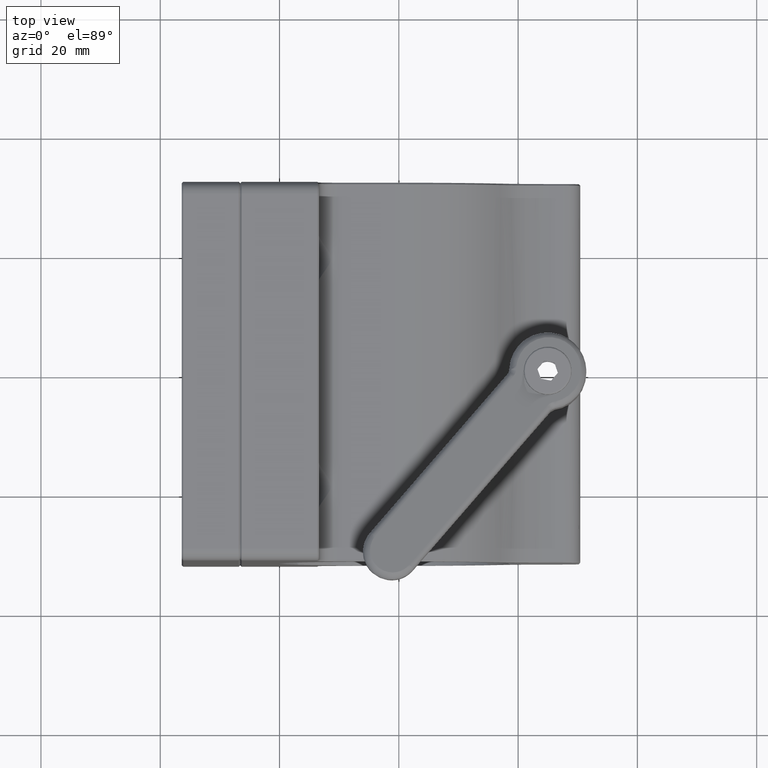
[diagram: clean part render]
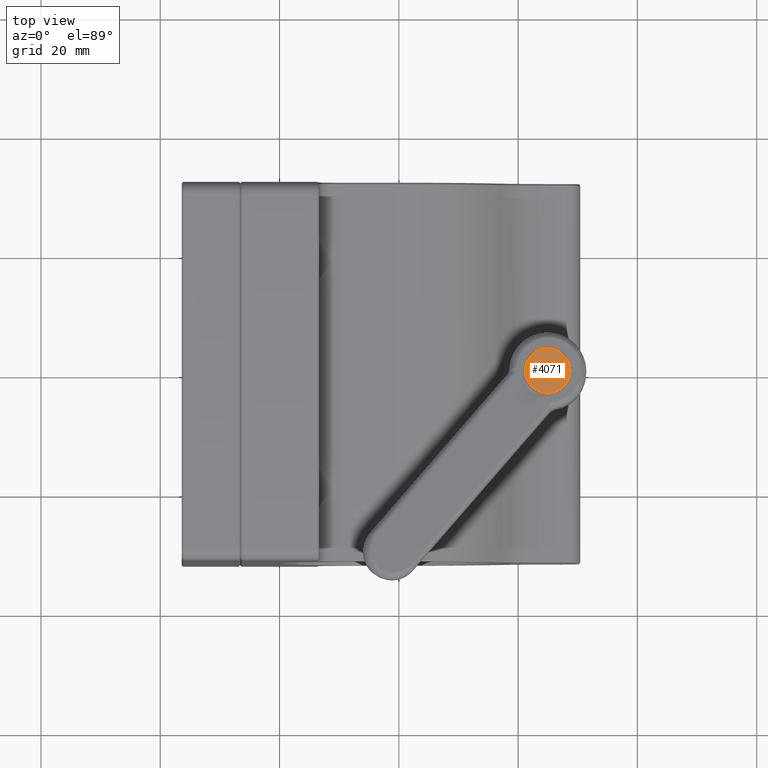
[diagram: same view with one face highlighted and labeled with its STEP entity id]
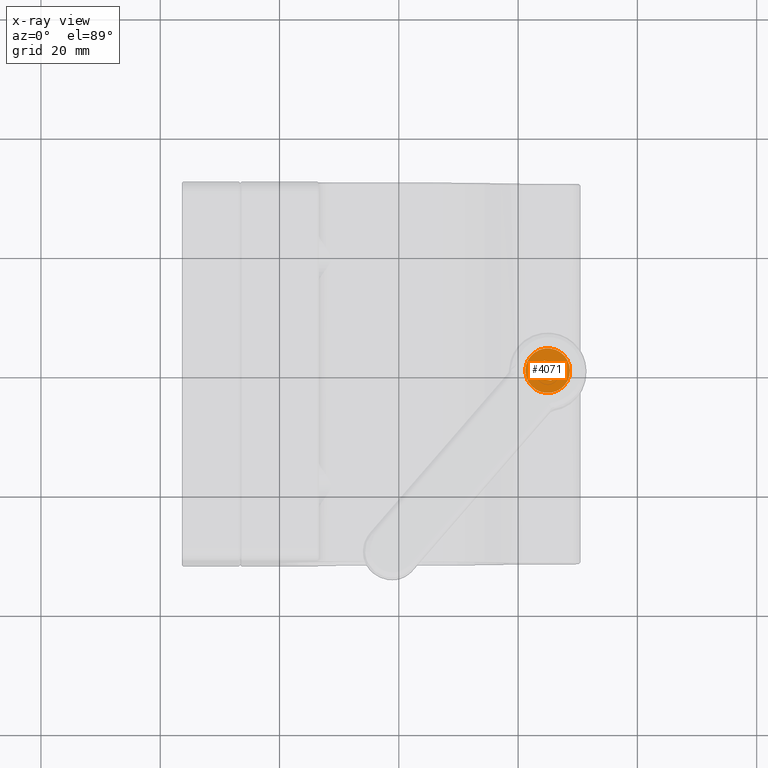
[diagram: x-ray of the same camera — body ghosted, the highlighted face saturated]
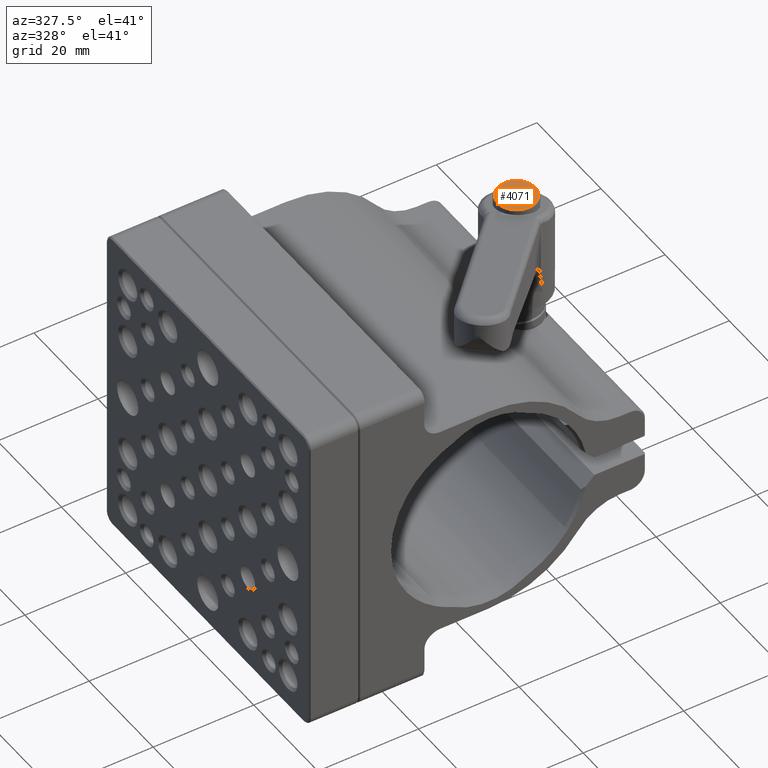
[diagram: same view with one face highlighted and labeled with its STEP entity id]
A machine part, top view. The second image highlights one B-rep face of the part: STEP entity #4071.
The next image is the same camera in x-ray: the body ghosted, the highlighted face saturated — about 0% of this face is hidden behind the body in this view.
A second angle (auxiliary view) of the same face is appended — the face is thin or edge-on in the first view.
In plain terms, the highlighted planar face has unit normal (-0, -0, -1).
Its self-contained STEP definition (entity closure, byte-faithful):
#200 = LINE ( 'NONE', #376, #6995 ) ;
#283 = DIRECTION ( 'NONE',  ( 9.405856477207718559E-17, 5.982243715074308407E-18, 1.000000000000000000 ) ) ;
#376 = CARTESIAN_POINT ( 'NONE',  ( 43.81150883296364640, -1.334178406950882856, 34.67499999999999005 ) ) ;
#760 = EDGE_CURVE ( 'NONE', #13211, #12269, #7745, .T. ) ;
#1499 = CARTESIAN_POINT ( 'NONE',  ( 44.37731318991809815, 1.660845704747088369, 34.67499999999999005 ) ) ;
#2386 = CARTESIAN_POINT ( 'NONE',  ( 44.37731318991809815, 1.660845704747088369, 34.67499999999999005 ) ) ;
#2492 = CARTESIAN_POINT ( 'NONE',  ( 43.22982202288174847, 0.3266672977962040703, 34.67499999999999005 ) ) ;
#2508 = CARTESIAN_POINT ( 'NONE',  ( 46.10649116703629602, 1.334178406950812246, 34.67499999999999005 ) ) ;
#2561 = DIRECTION ( 'NONE',  ( -0.3305482641583057934, 0.9437890892895143269, 2.544491896687376235E-17 ) ) ;
#2875 = DIRECTION ( 'NONE',  ( 0.9826194592184521737, -0.1856313507068149404, -9.131328407011563760E-17 ) ) ;
#3009 = CARTESIAN_POINT ( 'NONE',  ( 43.22982202288174847, 0.3266672977962040703, 34.67499999999999005 ) ) ;
#3091 = VECTOR ( 'NONE', #6194, 1000.000000000000114 ) ;
#3367 = EDGE_CURVE ( 'NONE', #10939, #13211, #6697, .T. ) ;
#3750 = ORIENTED_EDGE ( 'NONE', *, *, #7660, .F. ) ;
#3844 = DIRECTION ( 'NONE',  ( 0.7581577385826993032, -0.6520711950601463247, 0.000000000000000000 ) ) ;
#4041 = ORIENTED_EDGE ( 'NONE', *, *, #15395, .F. ) ;
#4050 = VECTOR ( 'NONE', #9664, 1000.000000000000114 ) ;
#4071 = ADVANCED_FACE ( 'NONE', ( #7161, #10883 ), #15838, .F. ) ;
#4699 = VECTOR ( 'NONE', #11385, 1000.000000000000114 ) ;
#4720 = AXIS2_PLACEMENT_3D ( 'NONE', #14704, #7316, #4726 ) ;
#4726 = DIRECTION ( 'NONE',  ( 0.7581577385826991922, -0.6520711950601464357, -6.741037995350282539E-17 ) ) ;
#4738 = ORIENTED_EDGE ( 'NONE', *, *, #6870, .T. ) ;
#5078 = CARTESIAN_POINT ( 'NONE',  ( 47.79943796760008468, -2.442984732292840633, 34.67500000000686811 ) ) ;
#5557 = EDGE_LOOP ( 'NONE', ( #15587, #4738 ) ) ;
#5618 = VERTEX_POINT ( 'NONE', #10353 ) ;
#5731 = VERTEX_POINT ( 'NONE', #5078 ) ;
#6194 = DIRECTION ( 'NONE',  ( -0.6520711950601464357, -0.7581577385826993032, 6.586836510324184752E-17 ) ) ;
#6239 = VECTOR ( 'NONE', #6457, 1000.000000000000114 ) ;
#6408 = ORIENTED_EDGE ( 'NONE', *, *, #16070, .F. ) ;
#6457 = DIRECTION ( 'NONE',  ( -0.9826194592184521737, 0.1856313507068148849, 9.131328407011557597E-17 ) ) ;
#6697 = LINE ( 'NONE', #13853, #6239 ) ;
#6870 = EDGE_CURVE ( 'NONE', #15062, #5731, #11759, .T. ) ;
#6995 = VECTOR ( 'NONE', #2875, 1000.000000000000114 ) ;
#7152 = DIRECTION ( 'NONE',  ( 0.7581577385826989701, -0.6520711950601466578, 0.000000000000000000 ) ) ;
#7161 = FACE_OUTER_BOUND ( 'NONE', #5557, .T. ) ;
#7316 = DIRECTION ( 'NONE',  ( -9.405856477207718559E-17, -5.982243715074296082E-18, -1.000000000000000000 ) ) ;
#7462 = LINE ( 'NONE', #8693, #4050 ) ;
#7660 = EDGE_CURVE ( 'NONE', #5618, #14357, #7462, .T. ) ;
#7745 = LINE ( 'NONE', #1499, #3091 ) ;
#7833 = CARTESIAN_POINT ( 'NONE',  ( 44.95899999999999608, -2.506160946958078107E-15, 34.67499999999999005 ) ) ;
#8043 = VECTOR ( 'NONE', #2561, 1000.000000000000114 ) ;
#8097 = ORIENTED_EDGE ( 'NONE', *, *, #3367, .F. ) ;
#8274 = CARTESIAN_POINT ( 'NONE',  ( 44.95899999999999608, -2.506160946958078107E-15, 34.67499999999999005 ) ) ;
#8693 = CARTESIAN_POINT ( 'NONE',  ( 45.54068681008184427, -1.660845704747156981, 34.67499999999999005 ) ) ;
#9074 = CARTESIAN_POINT ( 'NONE',  ( 46.68817797711820106, -0.3266672977962724045, 34.67499999999999005 ) ) ;
#9664 = DIRECTION ( 'NONE',  ( 0.6520711950601464357, 0.7581577385826991922, -6.586836510324184752E-17 ) ) ;
#10353 = CARTESIAN_POINT ( 'NONE',  ( 45.54068681008184427, -1.660845704747156981, 34.67499999999999005 ) ) ;
#10546 = EDGE_LOOP ( 'NONE', ( #3750, #4041, #6408, #12506, #8097, #13370 ) ) ;
#10883 = FACE_BOUND ( 'NONE', #10546, .T. ) ;
#10939 = VERTEX_POINT ( 'NONE', #2508 ) ;
#11084 = CARTESIAN_POINT ( 'NONE',  ( 46.68817797711820106, -0.3266672977962724045, 34.67499999999999005 ) ) ;
#11345 = LINE ( 'NONE', #9074, #8043 ) ;
#11385 = DIRECTION ( 'NONE',  ( 0.3305482641583059045, -0.9437890892895143269, -2.544491896687373153E-17 ) ) ;
#11759 = CIRCLE ( 'NONE', #14334, 3.746500000000003716 ) ;
#11901 = VERTEX_POINT ( 'NONE', #13160 ) ;
#12269 = VERTEX_POINT ( 'NONE', #2492 ) ;
#12506 = ORIENTED_EDGE ( 'NONE', *, *, #760, .F. ) ;
#12933 = LINE ( 'NONE', #3009, #4699 ) ;
#13160 = CARTESIAN_POINT ( 'NONE',  ( 43.81150883296364640, -1.334178406950882856, 34.67499999999999005 ) ) ;
#13211 = VERTEX_POINT ( 'NONE', #2386 ) ;
#13370 = ORIENTED_EDGE ( 'NONE', *, *, #14158, .F. ) ;
#13507 = AXIS2_PLACEMENT_3D ( 'NONE', #7833, #283, #3844 ) ;
#13853 = CARTESIAN_POINT ( 'NONE',  ( 46.10649116703629602, 1.334178406950812246, 34.67499999999999005 ) ) ;
#14158 = EDGE_CURVE ( 'NONE', #14357, #10939, #11345, .T. ) ;
#14334 = AXIS2_PLACEMENT_3D ( 'NONE', #8274, #15584, #7152 ) ;
#14357 = VERTEX_POINT ( 'NONE', #11084 ) ;
#14473 = EDGE_CURVE ( 'NONE', #5731, #15062, #15831, .T. ) ;
#14704 = CARTESIAN_POINT ( 'NONE',  ( 44.95899999999999608, -2.506160946958078107E-15, 34.67499999999999005 ) ) ;
#15062 = VERTEX_POINT ( 'NONE', #15314 ) ;
#15314 = CARTESIAN_POINT ( 'NONE',  ( 42.11856203239991459, 2.442984732292836192, 34.67500000000686811 ) ) ;
#15395 = EDGE_CURVE ( 'NONE', #11901, #5618, #200, .T. ) ;
#15584 = DIRECTION ( 'NONE',  ( 9.405856477207718559E-17, 5.982243715074308407E-18, 1.000000000000000000 ) ) ;
#15587 = ORIENTED_EDGE ( 'NONE', *, *, #14473, .T. ) ;
#15831 = CIRCLE ( 'NONE', #13507, 3.746500000000001940 ) ;
#15838 = PLANE ( 'NONE',  #4720 ) ;
#16070 = EDGE_CURVE ( 'NONE', #12269, #11901, #12933, .T. ) ;